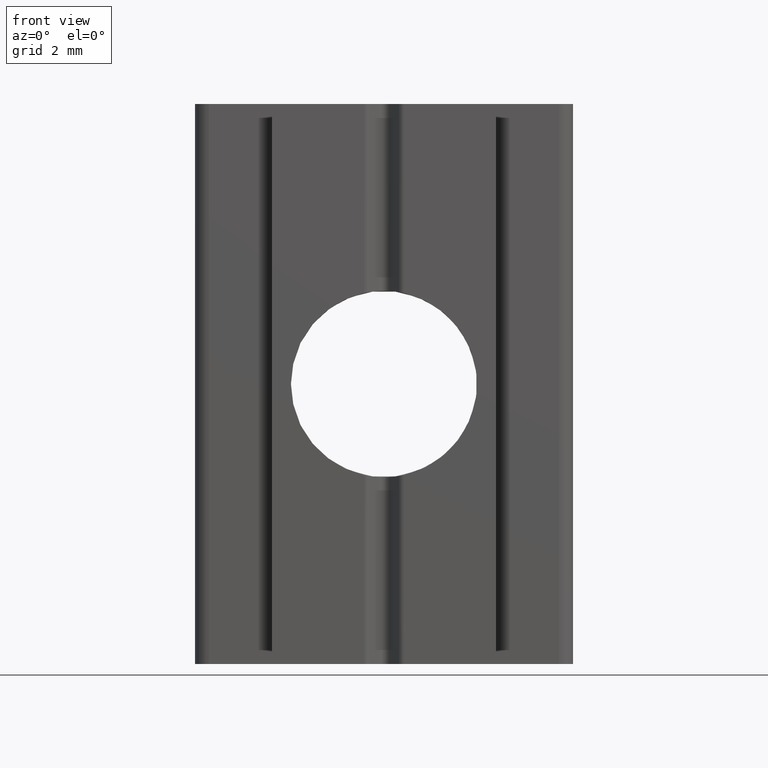
[diagram: clean part render]
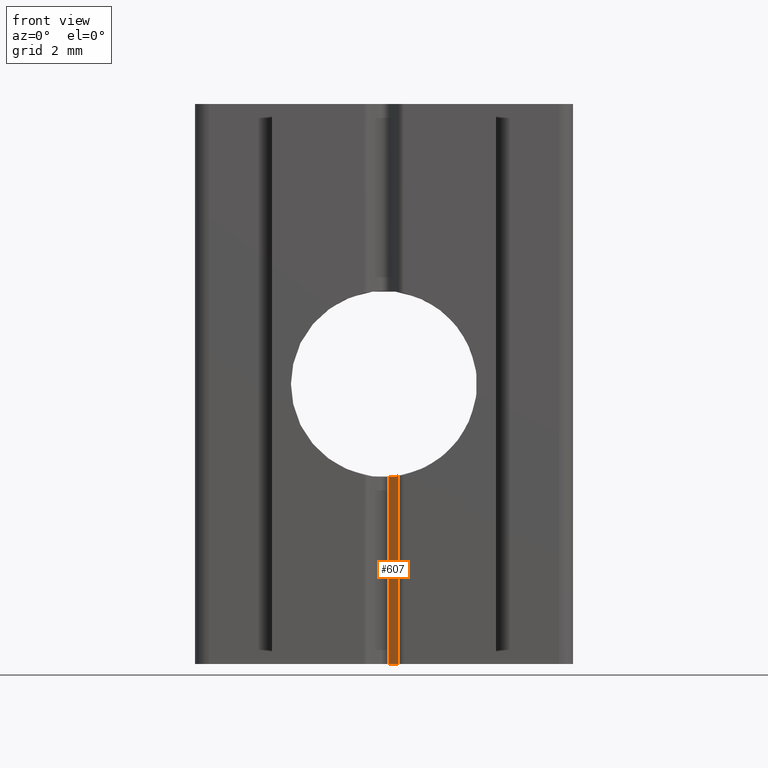
[diagram: same view with one face highlighted and labeled with its STEP entity id]
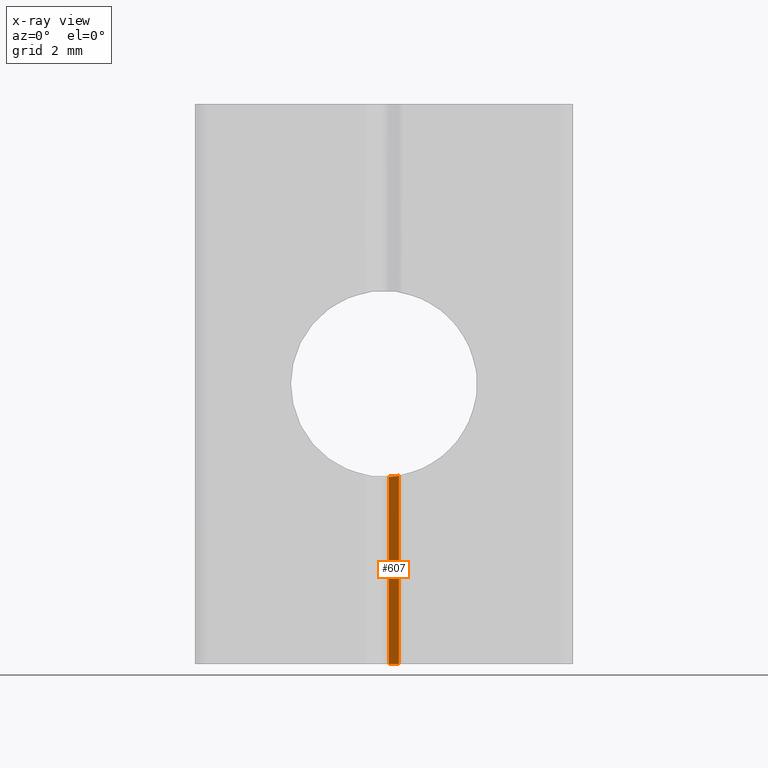
[diagram: x-ray of the same camera — body ghosted, the highlighted face saturated]
A machine part, front view. The second image highlights one B-rep face of the part: STEP entity #607.
The next image is the same camera in x-ray: the body ghosted, the highlighted face saturated — about 0% of this face is hidden behind the body in this view.
In plain terms, the highlighted planar face has unit normal (0.7071, 0.7071, 0).
Its self-contained STEP definition (entity closure, byte-faithful):
#17=PLANE('',#672);
#41=FACE_OUTER_BOUND('',#72,.T.);
#72=EDGE_LOOP('',(#450,#451,#452,#453));
#96=ELLIPSE('',#654,4.700138774547,3.3235);
#109=LINE('',#1002,#166);
#112=LINE('',#1011,#169);
#114=LINE('',#1018,#171);
#166=VECTOR('',#752,10.);
#169=VECTOR('',#761,10.);
#171=VECTOR('',#771,10.);
#253=VERTEX_POINT('',#919);
#254=VERTEX_POINT('',#930);
#270=VERTEX_POINT('',#1000);
#273=VERTEX_POINT('',#1010);
#315=EDGE_CURVE('',#254,#253,#96,.T.);
#337=EDGE_CURVE('',#270,#253,#109,.T.);
#341=EDGE_CURVE('',#273,#254,#112,.T.);
#345=EDGE_CURVE('',#273,#270,#114,.T.);
#450=ORIENTED_EDGE('',*,*,#315,.T.);
#451=ORIENTED_EDGE('',*,*,#337,.F.);
#452=ORIENTED_EDGE('',*,*,#345,.F.);
#453=ORIENTED_EDGE('',*,*,#341,.T.);
#607=ADVANCED_FACE('',(#41),#17,.F.);
#654=AXIS2_PLACEMENT_3D('',#931,#719,#720);
#672=AXIS2_PLACEMENT_3D('',#1017,#769,#770);
#719=DIRECTION('center_axis',(0.70710678118655,0.707106781186546,0.));
#720=DIRECTION('ref_axis',(0.707106781186545,-0.707106781186549,0.));
#752=DIRECTION('',(0.,0.,1.));
#761=DIRECTION('',(0.,0.,1.));
#769=DIRECTION('center_axis',(0.70710678118655,0.707106781186546,0.));
#770=DIRECTION('ref_axis',(-0.707106781186545,0.707106781186549,0.));
#771=DIRECTION('',(-0.707106781186545,0.707106781186549,0.));
#919=CARTESIAN_POINT('',(0.176776695296638,-2.57322330470336,-3.31879530100909));
#930=CARTESIAN_POINT('',(0.530330085889911,-2.92677669529664,-3.28091484955035));
#931=CARTESIAN_POINT('Origin',(0.,-2.39644660940672,0.));
#1000=CARTESIAN_POINT('',(0.176776695296638,-2.57322330470336,-10.));
#1002=CARTESIAN_POINT('',(0.176776695296638,-2.57322330470336,0.));
#1010=CARTESIAN_POINT('',(0.530330085889911,-2.92677669529664,-10.));
#1011=CARTESIAN_POINT('',(0.530330085889911,-2.92677669529664,0.));
#1017=CARTESIAN_POINT('Origin',(0.530330085889911,-2.92677669529664,0.));
#1018=CARTESIAN_POINT('',(-0.790466963666722,-1.60597964574,-10.));